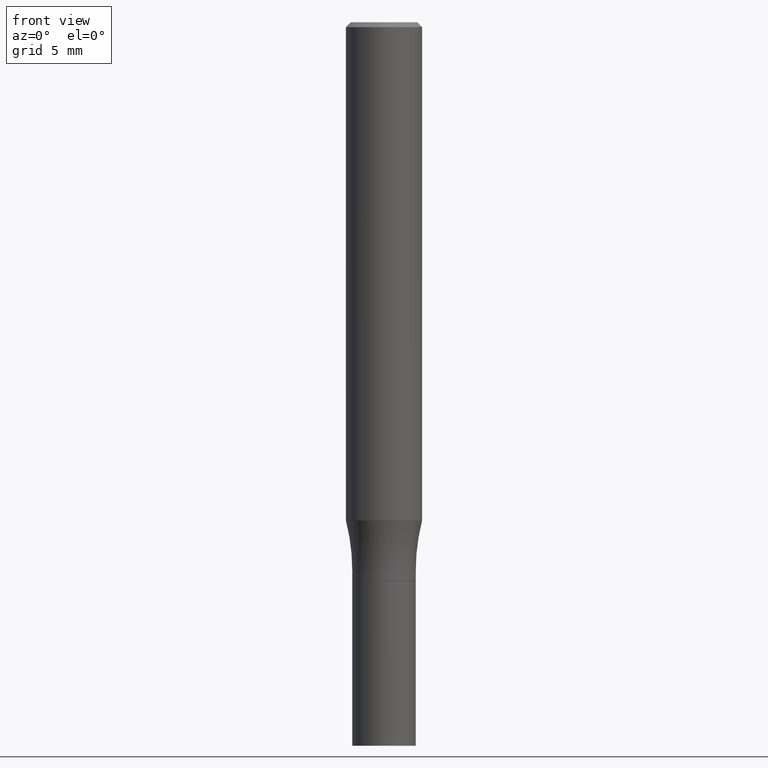
[diagram: clean part render]
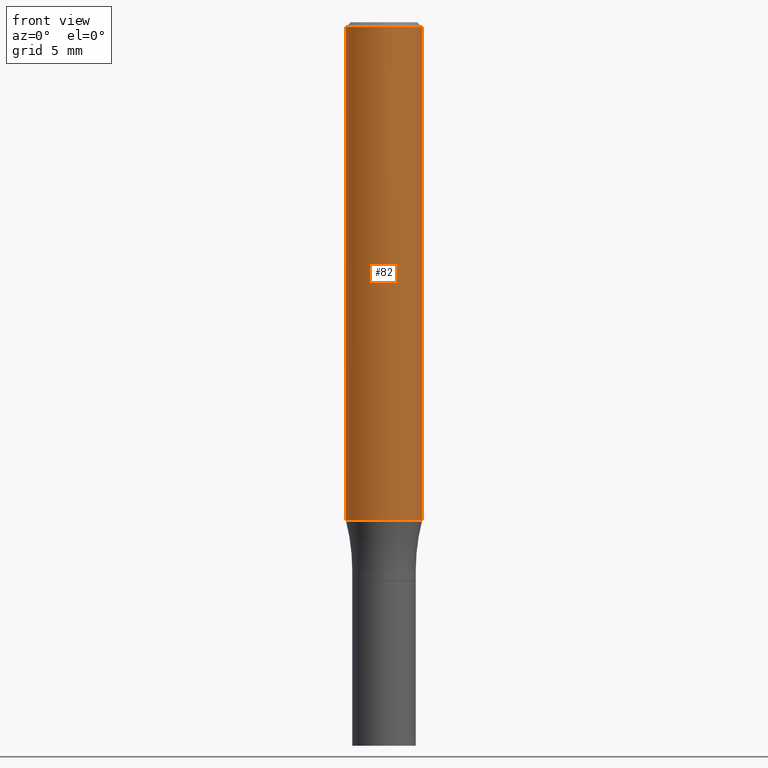
[diagram: same view with one face highlighted and labeled with its STEP entity id]
A machine part, front view. The second image highlights one B-rep face of the part: STEP entity #82.
In plain terms, the highlighted cylindrical surface (partial cylindrical patch) has radius 2.9997 mm, axis along (-0, 0, 1).
Its self-contained STEP definition (entity closure, byte-faithful):
#15 = EDGE_CURVE ( 'NONE', #75, #240, #97, .T. ) ;
#16 = VERTEX_POINT ( 'NONE', #301 ) ;
#17 = CARTESIAN_POINT ( 'NONE',  ( -0.1180999999999999966, 7.723156721521009862E-16, -0.01499999999999999944 ) ) ;
#20 = DIRECTION ( 'NONE',  ( 1.000000000000000000, -6.982962677686267499E-15, 4.876176775795936353E-29 ) ) ;
#25 = CARTESIAN_POINT ( 'NONE',  ( 3.779747038470435747E-29, -5.396477034174070739E-15, -1.545612452267071113 ) ) ;
#67 = CARTESIAN_POINT ( 'NONE',  ( -0.1181000000000000105, 8.391509709326783943E-16, -5.809262341591044484E-30 ) ) ;
#70 = AXIS2_PLACEMENT_3D ( 'NONE', #337, #305, #20 ) ;
#75 = VERTEX_POINT ( 'NONE', #200 ) ;
#82 = ADVANCED_FACE ( 'NONE', ( #375 ), #268, .T. ) ;
#87 = VERTEX_POINT ( 'NONE', #17 ) ;
#97 = CIRCLE ( 'NONE', #363, 0.1181000000000000383 ) ;
#108 = DIRECTION ( 'NONE',  ( -2.445468806185136877E-29, 3.491481338843145188E-15, 1.000000000000000000 ) ) ;
#125 = VECTOR ( 'NONE', #108, 39.37007874015748143 ) ;
#143 = AXIS2_PLACEMENT_3D ( 'NONE', #155, #249, #399 ) ;
#155 = CARTESIAN_POINT ( 'NONE',  ( 3.668203209277705088E-31, -5.237222008264718399E-17, -0.01499999999999999944 ) ) ;
#167 = ORIENTED_EDGE ( 'NONE', *, *, #176, .F. ) ;
#176 = EDGE_CURVE ( 'NONE', #75, #87, #265, .T. ) ;
#200 = CARTESIAN_POINT ( 'NONE',  ( -0.1181000000000000660, -4.557326063241392542E-15, -1.545612452267071113 ) ) ;
#210 = DIRECTION ( 'NONE',  ( -2.445468806185136877E-29, 3.491481338843145188E-15, 1.000000000000000000 ) ) ;
#222 = LINE ( 'NONE', #439, #125 ) ;
#234 = DIRECTION ( 'NONE',  ( -2.445468806185136597E-29, 3.491481338843145583E-15, 1.000000000000000000 ) ) ;
#240 = VERTEX_POINT ( 'NONE', #432 ) ;
#249 = DIRECTION ( 'NONE',  ( -2.445468806185136597E-29, 3.491481338843145583E-15, 1.000000000000000000 ) ) ;
#260 = VECTOR ( 'NONE', #210, 39.37007874015748143 ) ;
#261 = ORIENTED_EDGE ( 'NONE', *, *, #431, .F. ) ;
#265 = LINE ( 'NONE', #67, #260 ) ;
#268 = CYLINDRICAL_SURFACE ( 'NONE', #70, 0.1181000000000000105 ) ;
#298 = DIRECTION ( 'NONE',  ( 1.000000000000000000, -6.982962677686262766E-15, 0.000000000000000000 ) ) ;
#301 = CARTESIAN_POINT ( 'NONE',  ( 0.1180999999999999966, -8.625970336194650129E-16, -0.01499999999999999944 ) ) ;
#305 = DIRECTION ( 'NONE',  ( -2.445468806185136597E-29, 3.491481338843145583E-15, 1.000000000000000000 ) ) ;
#337 = CARTESIAN_POINT ( 'NONE',  ( 0.000000000000000000, 0.000000000000000000, 0.000000000000000000 ) ) ;
#339 = CIRCLE ( 'NONE', #143, 0.1180999999999999966 ) ;
#347 = ORIENTED_EDGE ( 'NONE', *, *, #373, .T. ) ;
#363 = AXIS2_PLACEMENT_3D ( 'NONE', #25, #234, #298 ) ;
#373 = EDGE_CURVE ( 'NONE', #240, #16, #222, .T. ) ;
#375 = FACE_OUTER_BOUND ( 'NONE', #422, .T. ) ;
#377 = ORIENTED_EDGE ( 'NONE', *, *, #15, .T. ) ;
#399 = DIRECTION ( 'NONE',  ( 1.000000000000000000, -6.982962677686266711E-15, 0.000000000000000000 ) ) ;
#422 = EDGE_LOOP ( 'NONE', ( #167, #377, #347, #261 ) ) ;
#431 = EDGE_CURVE ( 'NONE', #87, #16, #339, .T. ) ;
#432 = CARTESIAN_POINT ( 'NONE',  ( 0.1181000000000000660, -6.221164926408819001E-15, -1.545612452267071113 ) ) ;
#439 = CARTESIAN_POINT ( 'NONE',  ( 0.1181000000000000105, -8.246878922347482626E-16, 5.758764772215001141E-30 ) ) ;